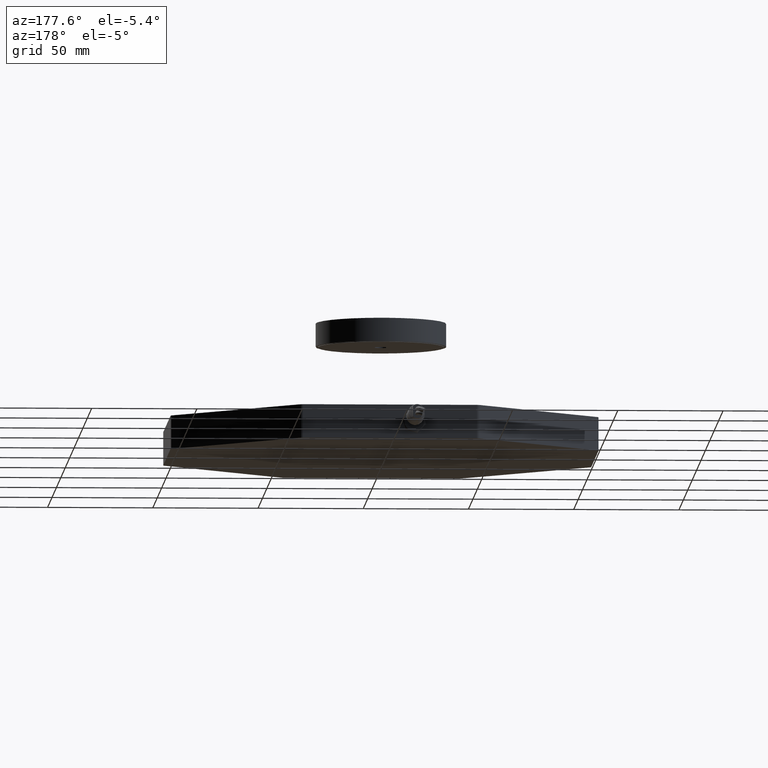
[diagram: clean part render]
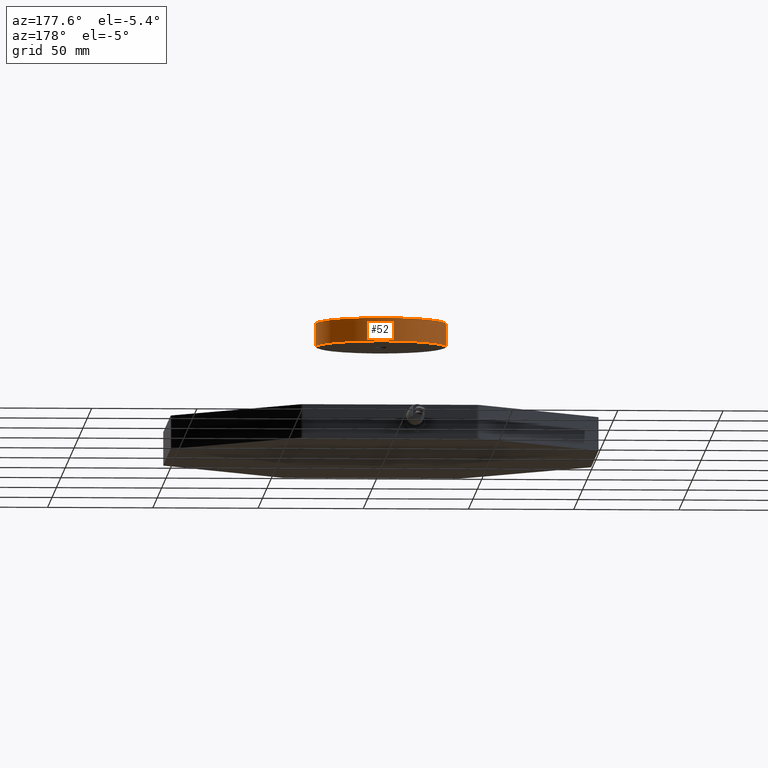
[diagram: same view with one face highlighted and labeled with its STEP entity id]
A machine part, auxiliary view. The second image highlights one B-rep face of the part: STEP entity #52.
In plain terms, the highlighted face is a freeform B-spline surface patch.
Its self-contained STEP definition (entity closure, byte-faithful):
#52=ADVANCED_FACE('',(#204),#2046,.T.);
#204=FACE_OUTER_BOUND('',#344,.T.);
#344=EDGE_LOOP('',(#502,#503,#504,#505));
#502=ORIENTED_EDGE('',*,*,#1162,.F.);
#503=ORIENTED_EDGE('',*,*,#1163,.T.);
#504=ORIENTED_EDGE('',*,*,#1164,.T.);
#505=ORIENTED_EDGE('',*,*,#1165,.T.);
#1162=EDGE_CURVE('',#1832,#1831,#1732,.T.);
#1163=EDGE_CURVE('',#1832,#1833,#1733,.T.);
#1164=EDGE_CURVE('',#1833,#1834,#1734,.T.);
#1165=EDGE_CURVE('',#1834,#1831,#1735,.T.);
#1732=(
BOUNDED_CURVE()
B_SPLINE_CURVE(2,(#2445,#2446,#2447,#2448,#2449),.UNSPECIFIED.,.F.,.F.)
B_SPLINE_CURVE_WITH_KNOTS((3,2,3),(3.14159265358979,4.71238898038469,6.28318530717959),
 .UNSPECIFIED.)
CURVE()
GEOMETRIC_REPRESENTATION_ITEM()
RATIONAL_B_SPLINE_CURVE((1.,0.707106781186547,1.,0.707106781186547,1.))
REPRESENTATION_ITEM('')
);
#1733=(
BOUNDED_CURVE()
B_SPLINE_CURVE(1,(#2450,#2451),.UNSPECIFIED.,.F.,.F.)
B_SPLINE_CURVE_WITH_KNOTS((2,2),(0.,11.),.UNSPECIFIED.)
CURVE()
GEOMETRIC_REPRESENTATION_ITEM()
RATIONAL_B_SPLINE_CURVE((1.,1.))
REPRESENTATION_ITEM('')
);
#1734=(
BOUNDED_CURVE()
B_SPLINE_CURVE(2,(#2452,#2453,#2454,#2455,#2456),.UNSPECIFIED.,.F.,.F.)
B_SPLINE_CURVE_WITH_KNOTS((3,2,3),(3.14159265358979,4.71238898038469,6.28318530717959),
 .UNSPECIFIED.)
CURVE()
GEOMETRIC_REPRESENTATION_ITEM()
RATIONAL_B_SPLINE_CURVE((1.,0.707106781186547,1.,0.707106781186547,1.))
REPRESENTATION_ITEM('')
);
#1735=(
BOUNDED_CURVE()
B_SPLINE_CURVE(1,(#2457,#2458),.UNSPECIFIED.,.F.,.F.)
B_SPLINE_CURVE_WITH_KNOTS((2,2),(-11.,0.),.UNSPECIFIED.)
CURVE()
GEOMETRIC_REPRESENTATION_ITEM()
RATIONAL_B_SPLINE_CURVE((1.,1.))
REPRESENTATION_ITEM('')
);
#1831=VERTEX_POINT('',#2394);
#1832=VERTEX_POINT('',#2395);
#1833=VERTEX_POINT('',#2396);
#1834=VERTEX_POINT('',#2397);
#2046=(
BOUNDED_SURFACE()
B_SPLINE_SURFACE(2,1,((#2310,#2311),(#2312,#2313),(#2314,#2315),(#2316,
#2317),(#2318,#2319)),.UNSPECIFIED.,.F.,.F.,.F.)
B_SPLINE_SURFACE_WITH_KNOTS((3,2,3),(2,2),(-6.28318530717959,-4.71238898038469,
-3.14159265358979),(0.,11.),.UNSPECIFIED.)
GEOMETRIC_REPRESENTATION_ITEM()
RATIONAL_B_SPLINE_SURFACE(((1.,1.),(0.707106781186547,0.707106781186547),
(1.,1.),(0.707106781186547,0.707106781186547),(1.,1.)))
REPRESENTATION_ITEM('')
SURFACE()
);
#2310=CARTESIAN_POINT('',(30.9999999147786,0.,52.9999997008662));
#2311=CARTESIAN_POINT('',(30.9999999147786,0.,63.9999997008662));
#2312=CARTESIAN_POINT('',(30.9999999147786,31.,52.9999997008662));
#2313=CARTESIAN_POINT('',(30.9999999147786,31.,63.9999997008662));
#2314=CARTESIAN_POINT('',(-8.52214423474607E-8,31.,52.9999997008662));
#2315=CARTESIAN_POINT('',(-8.52214423474607E-8,31.,63.9999997008662));
#2316=CARTESIAN_POINT('',(-31.0000000852214,31.,52.9999997008662));
#2317=CARTESIAN_POINT('',(-31.0000000852214,31.,63.9999997008662));
#2318=CARTESIAN_POINT('',(-31.0000000852214,0.,52.9999997008662));
#2319=CARTESIAN_POINT('',(-31.0000000852214,0.,63.9999997008662));
#2394=CARTESIAN_POINT('',(30.9999999147786,0.,52.9999997008662));
#2395=CARTESIAN_POINT('',(-31.0000000852214,0.,52.9999997008662));
#2396=CARTESIAN_POINT('',(-31.0000000852214,0.,63.9999997008662));
#2397=CARTESIAN_POINT('',(30.9999999147786,0.,63.9999997008662));
#2445=CARTESIAN_POINT('',(-31.0000000852214,0.,52.9999997008662));
#2446=CARTESIAN_POINT('',(-31.0000000852214,31.,52.9999997008662));
#2447=CARTESIAN_POINT('',(-8.52214423474607E-8,31.,52.9999997008662));
#2448=CARTESIAN_POINT('',(30.9999999147786,31.,52.9999997008662));
#2449=CARTESIAN_POINT('',(30.9999999147786,0.,52.9999997008662));
#2450=CARTESIAN_POINT('',(-31.0000000852214,0.,52.9999997008662));
#2451=CARTESIAN_POINT('',(-31.0000000852214,0.,63.9999997008662));
#2452=CARTESIAN_POINT('',(-31.0000000852214,0.,63.9999997008662));
#2453=CARTESIAN_POINT('',(-31.0000000852214,31.,63.9999997008662));
#2454=CARTESIAN_POINT('',(-8.52214423474607E-8,31.,63.9999997008662));
#2455=CARTESIAN_POINT('',(30.9999999147786,31.,63.9999997008662));
#2456=CARTESIAN_POINT('',(30.9999999147786,0.,63.9999997008662));
#2457=CARTESIAN_POINT('',(30.9999999147786,0.,63.9999997008662));
#2458=CARTESIAN_POINT('',(30.9999999147786,0.,52.9999997008662));